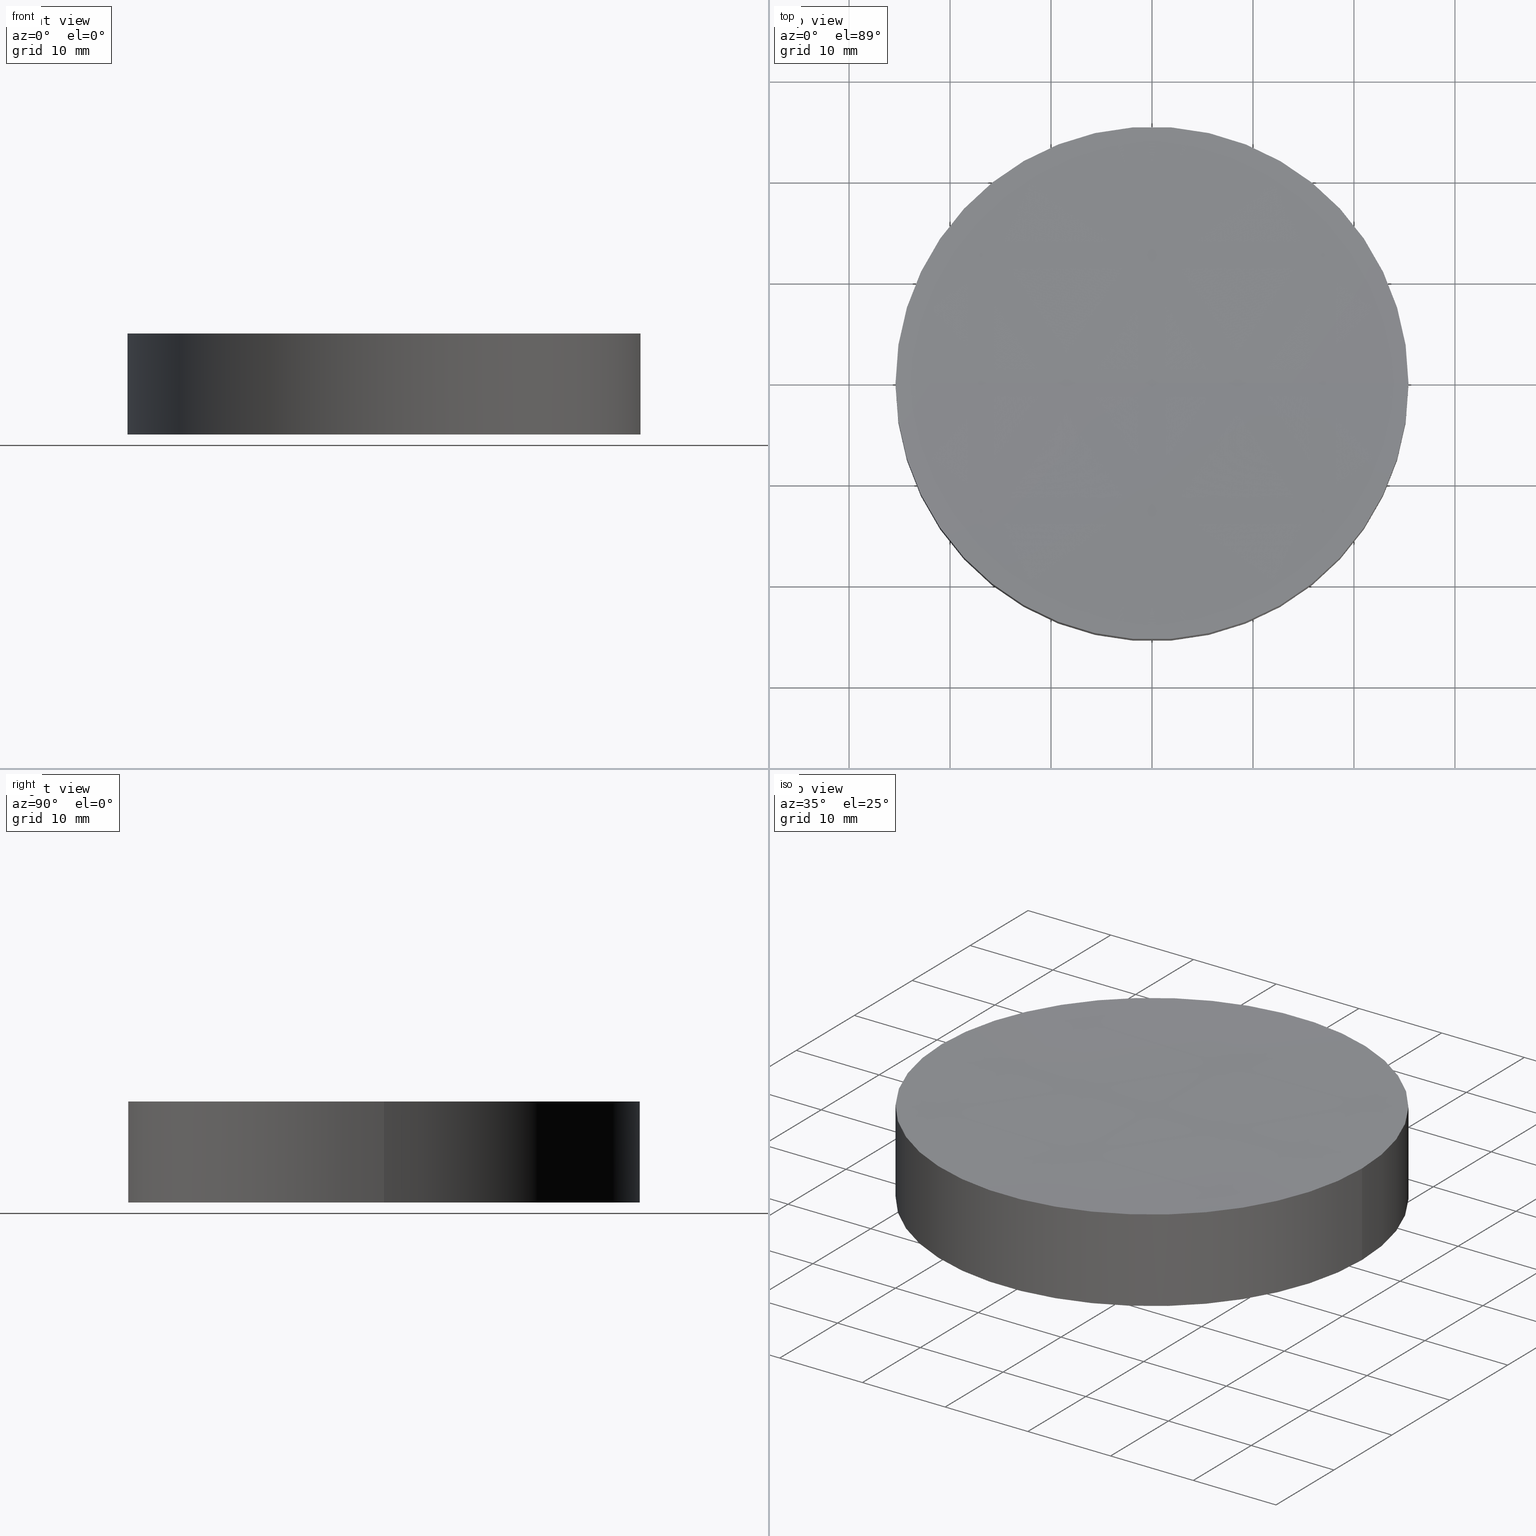
[diagram: canonical four-view strip — front | top / right | iso, engineering-drawing reading convention]
A machine part, canonical four-view strip (front | top / right | iso — engineering-drawing reading convention). The complete STEP part file that produces these views, byte-faithful:
ISO-10303-21;
HEADER;
FILE_DESCRIPTION (( 'STEP AP203' ),
    '1' );
FILE_NAME ('010-0510E_N-BK7_PCV_window.STEP',
    '2021-02-25T13:07:18',
    ( '' ),
    ( '' ),
    'SwSTEP 2.0',
    'SolidWorks 2019',
    '' );
FILE_SCHEMA (( 'CONFIG_CONTROL_DESIGN' ));
ENDSEC;

DATA;
#1 = DIRECTION ( 'NONE',  ( 1.000000000000000000, 0.000000000000000000, 0.000000000000000000 ) ) ;
#2 = ORIENTED_EDGE ( 'NONE', *, *, #197, .F. ) ;
#3 = AXIS2_PLACEMENT_3D ( 'NONE', #78, #91, #1 ) ;
#4 = CC_DESIGN_PERSON_AND_ORGANIZATION_ASSIGNMENT ( #90, #58, ( #189 ) ) ;
#5 = LOCAL_TIME ( 15, 7, 18.00000000000000000, #98 ) ;
#6 = ORIENTED_EDGE ( 'NONE', *, *, #197, .T. ) ;
#7 = DIRECTION ( 'NONE',  ( 1.000000000000000000, 0.000000000000000000, -0.000000000000000000 ) ) ;
#8 = COORDINATED_UNIVERSAL_TIME_OFFSET ( 2, 0, .AHEAD. ) ;
#9 = COORDINATED_UNIVERSAL_TIME_OFFSET ( 2, 0, .AHEAD. ) ;
#10 = CARTESIAN_POINT ( 'NONE',  ( 0.000000000000000000, 0.000000000000000000, 10.00000000000000000 ) ) ;
#11 = ORIENTED_EDGE ( 'NONE', *, *, #12, .F. ) ;
#12 = EDGE_CURVE ( 'NONE', #21, #31, #198, .T. ) ;
#13 = DIRECTION ( 'NONE',  ( -0.000000000000000000, -0.000000000000000000, -1.000000000000000000 ) ) ;
#14 = APPROVAL_ROLE ( '' ) ;
#15 = CARTESIAN_POINT ( 'NONE',  ( -25.39999999999999858, 0.000000000000000000, 10.00000000000000000 ) ) ;
#16 = EDGE_LOOP ( 'NONE', ( #2, #180, #64 ) ) ;
#17 = DIRECTION ( 'NONE',  ( -1.000000000000000000, 0.000000000000000000, 0.000000000000000000 ) ) ;
#18 = CC_DESIGN_APPROVAL ( #65, ( #43 ) ) ;
#19 = APPROVAL_PERSON_ORGANIZATION ( #162, #136, #116 ) ;
#20 = APPLICATION_PROTOCOL_DEFINITION ( 'international standard', 'config_control_design', 1994, #109 ) ;
#21 = VERTEX_POINT ( 'NONE', #107 ) ;
#22 = CALENDAR_DATE ( 2021, 25, 2 ) ;
#23 = PERSON_AND_ORGANIZATION_ROLE ( 'classification_officer' ) ;
#24 = CARTESIAN_POINT ( 'NONE',  ( 9.367506770274758310E-14, 0.000000000000000000, 759.5697699347272192 ) ) ;
#25 = PRODUCT ( '010-0510E_N-BK7_PCV_window', '010-0510E_N-BK7_PCV_window', '', ( #142 ) ) ;
#26 = CC_DESIGN_PERSON_AND_ORGANIZATION_ASSIGNMENT ( #37, #70, ( #25 ) ) ;
#27 = SPHERICAL_SURFACE ( 'NONE', #112, 750.0000000000001137 ) ;
#28 = APPLICATION_CONTEXT ( 'configuration controlled 3d designs of mechanical parts and assemblies' ) ;
#29 = APPROVAL_DATE_TIME ( #199, #48 ) ;
#30 = CARTESIAN_POINT ( 'NONE',  ( 0.000000000000000000, 0.000000000000000000, 0.000000000000000000 ) ) ;
#31 = VERTEX_POINT ( 'NONE', #185 ) ;
#32 = CYLINDRICAL_SURFACE ( 'NONE', #138, 25.39999999999999858 ) ;
#33 = ADVANCED_FACE ( 'NONE', ( #62 ), #32, .T. ) ;
#34 = ORIENTED_EDGE ( 'NONE', *, *, #40, .F. ) ;
#35 = CC_DESIGN_APPROVAL ( #48, ( #189 ) ) ;
#36 = AXIS2_PLACEMENT_3D ( 'NONE', #10, #179, #73 ) ;
#37 = PERSON_AND_ORGANIZATION ( #150, #96 ) ;
#38 = APPROVAL_ROLE ( '' ) ;
#39 = DIRECTION ( 'NONE',  ( 0.000000000000000000, 0.000000000000000000, 1.000000000000000000 ) ) ;
#40 = EDGE_CURVE ( 'NONE', #154, #161, #155, .T. ) ;
#41 = PERSON_AND_ORGANIZATION_ROLE ( 'design_supplier' ) ;
#42 = CARTESIAN_POINT ( 'NONE',  ( 9.367506770274758310E-14, 0.000000000000000000, 759.5697699347272192 ) ) ;
#43 = SECURITY_CLASSIFICATION ( '', '', #55 ) ;
#44 = CIRCLE ( 'NONE', #119, 25.40000000000502922 ) ;
#45 = DATE_TIME_ROLE ( 'creation_date' ) ;
#46 = FACE_OUTER_BOUND ( 'NONE', #16, .T. ) ;
#47 = LINE ( 'NONE', #15, #105 ) ;
#48 = APPROVAL ( #106, 'UNSPECIFIED' ) ;
#49 = DIRECTION ( 'NONE',  ( 1.224646799147353207E-16, -1.000000000000000000, 0.000000000000000000 ) ) ;
#50 = CC_DESIGN_APPROVAL ( #136, ( #110 ) ) ;
#51 = PRODUCT_RELATED_PRODUCT_CATEGORY ( 'detail', '', ( #25 ) ) ;
#52 = VECTOR ( 'NONE', #134, 1000.000000000000000 ) ;
#53 = CARTESIAN_POINT ( 'NONE',  ( 25.40000000000512514, 3.110602869834904798E-15, 10.00000000000000888 ) ) ;
#54 = ORIENTED_EDGE ( 'NONE', *, *, #170, .T. ) ;
#55 = SECURITY_CLASSIFICATION_LEVEL ( 'unclassified' ) ;
#56 = APPROVAL_DATE_TIME ( #196, #65 ) ;
#57 = CARTESIAN_POINT ( 'NONE',  ( 25.39999999999999858, 3.110602869834276865E-15, 0.000000000000000000 ) ) ;
#58 = PERSON_AND_ORGANIZATION_ROLE ( 'creator' ) ;
#59 = SPHERICAL_SURFACE ( 'NONE', #190, 750.0000000000001137 ) ;
#60 = EDGE_CURVE ( 'NONE', #79, #161, #80, .T. ) ;
#61 = ORIENTED_EDGE ( 'NONE', *, *, #77, .F. ) ;
#62 = FACE_OUTER_BOUND ( 'NONE', #139, .T. ) ;
#63 = AXIS2_PLACEMENT_3D ( 'NONE', #42, #148, #143 ) ;
#64 = ORIENTED_EDGE ( 'NONE', *, *, #170, .F. ) ;
#65 = APPROVAL ( #146, 'UNSPECIFIED' ) ;
#66 = ADVANCED_FACE ( 'NONE', ( #46 ), #59, .F. ) ;
#67 = AXIS2_PLACEMENT_3D ( 'NONE', #68, #125, #115 ) ;
#68 = CARTESIAN_POINT ( 'NONE',  ( 9.367506770274758310E-14, 0.000000000000000000, 10.00000000000000888 ) ) ;
#69 = ORIENTED_EDGE ( 'NONE', *, *, #94, .T. ) ;
#70 = PERSON_AND_ORGANIZATION_ROLE ( 'design_owner' ) ;
#71 = DATE_AND_TIME ( #22, #74 ) ;
#72 = DATE_TIME_ROLE ( 'classification_date' ) ;
#73 = DIRECTION ( 'NONE',  ( -1.000000000000000000, 0.000000000000000000, 0.000000000000000000 ) ) ;
#74 = LOCAL_TIME ( 15, 7, 18.00000000000000000, #8 ) ;
#75 = COORDINATED_UNIVERSAL_TIME_OFFSET ( 2, 0, .AHEAD. ) ;
#76 = DIRECTION ( 'NONE',  ( 1.000000000000000000, 0.000000000000000000, 0.000000000000000000 ) ) ;
#77 = EDGE_CURVE ( 'NONE', #161, #79, #158, .T. ) ;
#78 = CARTESIAN_POINT ( 'NONE',  ( 0.000000000000000000, 0.000000000000000000, 0.000000000000000000 ) ) ;
#79 = VERTEX_POINT ( 'NONE', #108 ) ;
#80 = CIRCLE ( 'NONE', #3, 25.39999999999999858 ) ;
#81 = EDGE_LOOP ( 'NONE', ( #11, #84, #54 ) ) ;
#82 = EDGE_CURVE ( 'NONE', #21, #79, #47, .T. ) ;
#83 =( GEOMETRIC_REPRESENTATION_CONTEXT ( 3 ) GLOBAL_UNCERTAINTY_ASSIGNED_CONTEXT ( ( #167 ) ) GLOBAL_UNIT_ASSIGNED_CONTEXT ( ( #95, #97, #194 ) ) REPRESENTATION_CONTEXT ( 'NONE', 'WORKASPACE' ) );
#84 = ORIENTED_EDGE ( 'NONE', *, *, #94, .F. ) ;
#85 = PERSON_AND_ORGANIZATION ( #150, #96 ) ;
#86 = DATE_AND_TIME ( #114, #5 ) ;
#87 = CYLINDRICAL_SURFACE ( 'NONE', #36, 25.39999999999999858 ) ;
#88 = FACE_OUTER_BOUND ( 'NONE', #81, .T. ) ;
#89 = DESIGN_CONTEXT ( 'detailed design', #109, 'design' ) ;
#90 = PERSON_AND_ORGANIZATION ( #150, #96 ) ;
#91 = DIRECTION ( 'NONE',  ( 0.000000000000000000, 0.000000000000000000, 1.000000000000000000 ) ) ;
#92 = ORIENTED_EDGE ( 'NONE', *, *, #77, .T. ) ;
#93 = CARTESIAN_POINT ( 'NONE',  ( 0.000000000000000000, 0.000000000000000000, 10.00000000000000000 ) ) ;
#94 = EDGE_CURVE ( 'NONE', #154, #21, #44, .T. ) ;
#95 =( LENGTH_UNIT ( ) NAMED_UNIT ( * ) SI_UNIT ( .MILLI., .METRE. ) );
#96 = ORGANIZATION ( 'UNSPECIFIED', 'UNSPECIFIED', '' ) ;
#97 =( NAMED_UNIT ( * ) PLANE_ANGLE_UNIT ( ) SI_UNIT ( $, .RADIAN. ) );
#98 = COORDINATED_UNIVERSAL_TIME_OFFSET ( 2, 0, .AHEAD. ) ;
#99 = DIRECTION ( 'NONE',  ( -0.000000000000000000, -0.000000000000000000, -1.000000000000000000 ) ) ;
#100 = ORIENTED_EDGE ( 'NONE', *, *, #60, .T. ) ;
#101 = APPROVAL_STATUS ( 'not_yet_approved' ) ;
#102 = PRODUCT_DEFINITION_SHAPE ( 'NONE', 'NONE',  #189 ) ;
#103 = FACE_OUTER_BOUND ( 'NONE', #174, .T. ) ;
#104 = CC_DESIGN_PERSON_AND_ORGANIZATION_ASSIGNMENT ( #85, #145, ( #110 ) ) ;
#105 = VECTOR ( 'NONE', #172, 1000.000000000000000 ) ;
#106 = APPROVAL_STATUS ( 'not_yet_approved' ) ;
#107 = CARTESIAN_POINT ( 'NONE',  ( -25.40000000000493330, 0.000000000000000000, 10.00000000000000888 ) ) ;
#108 = CARTESIAN_POINT ( 'NONE',  ( -25.39999999999999858, 0.000000000000000000, 0.000000000000000000 ) ) ;
#109 = APPLICATION_CONTEXT ( 'configuration controlled 3d designs of mechanical parts and assemblies' ) ;
#110 = PRODUCT_DEFINITION_FORMATION_WITH_SPECIFIED_SOURCE ( 'ANY', '', #25, .NOT_KNOWN. ) ;
#111 = ADVANCED_FACE ( 'NONE', ( #164 ), #87, .T. ) ;
#112 = AXIS2_PLACEMENT_3D ( 'NONE', #24, #147, #182 ) ;
#113 = DIRECTION ( 'NONE',  ( 0.000000000000000000, 0.000000000000000000, 1.000000000000000000 ) ) ;
#114 = CALENDAR_DATE ( 2021, 25, 2 ) ;
#115 = DIRECTION ( 'NONE',  ( 1.000000000000000000, 0.000000000000000000, 0.000000000000000000 ) ) ;
#116 = APPROVAL_ROLE ( '' ) ;
#117 = CARTESIAN_POINT ( 'NONE',  ( 0.000000000000000000, 0.000000000000000000, 0.000000000000000000 ) ) ;
#118 = AXIS2_PLACEMENT_3D ( 'NONE', #191, #113, #177 ) ;
#119 = AXIS2_PLACEMENT_3D ( 'NONE', #192, #99, #165 ) ;
#120 = CALENDAR_DATE ( 2021, 25, 2 ) ;
#121 = CARTESIAN_POINT ( 'NONE',  ( 9.367506770274758310E-14, 0.000000000000000000, 759.5697699347272192 ) ) ;
#122 = CC_DESIGN_DATE_AND_TIME_ASSIGNMENT ( #86, #72, ( #43 ) ) ;
#123 = LOCAL_TIME ( 15, 7, 18.00000000000000000, #9 ) ;
#124 = AXIS2_PLACEMENT_3D ( 'NONE', #30, #152, #76 ) ;
#125 = DIRECTION ( 'NONE',  ( -0.000000000000000000, -0.000000000000000000, -1.000000000000000000 ) ) ;
#126 = ORIENTED_EDGE ( 'NONE', *, *, #40, .T. ) ;
#127 = APPROVAL_DATE_TIME ( #71, #136 ) ;
#128 = CALENDAR_DATE ( 2021, 25, 2 ) ;
#129 = PLANE ( 'NONE',  #141 ) ;
#130 = ADVANCED_FACE ( 'NONE', ( #103 ), #129, .F. ) ;
#131 = AXIS2_PLACEMENT_3D ( 'NONE', #137, #49, #135 ) ;
#132 = LOCAL_TIME ( 15, 7, 18.00000000000000000, #168 ) ;
#133 = CALENDAR_DATE ( 2021, 25, 2 ) ;
#134 = DIRECTION ( 'NONE',  ( -0.000000000000000000, -0.000000000000000000, -1.000000000000000000 ) ) ;
#135 = DIRECTION ( 'NONE',  ( 1.000000000000000000, 1.224646799147353207E-16, 0.000000000000000000 ) ) ;
#136 = APPROVAL ( #101, 'UNSPECIFIED' ) ;
#137 = CARTESIAN_POINT ( 'NONE',  ( 9.367506770274758310E-14, 0.000000000000000000, 759.5697699347272192 ) ) ;
#138 = AXIS2_PLACEMENT_3D ( 'NONE', #93, #13, #17 ) ;
#139 = EDGE_LOOP ( 'NONE', ( #34, #69, #201, #100 ) ) ;
#140 = APPROVAL_PERSON_ORGANIZATION ( #163, #65, #38 ) ;
#141 = AXIS2_PLACEMENT_3D ( 'NONE', #117, #39, #7 ) ;
#142 = MECHANICAL_CONTEXT ( 'NONE', #28, 'mechanical' ) ;
#143 = DIRECTION ( 'NONE',  ( 0.000000000000000000, 0.000000000000000000, 1.000000000000000000 ) ) ;
#144 = APPLICATION_PROTOCOL_DEFINITION ( 'international standard', 'config_control_design', 1994, #28 ) ;
#145 = PERSON_AND_ORGANIZATION_ROLE ( 'creator' ) ;
#146 = APPROVAL_STATUS ( 'not_yet_approved' ) ;
#147 = DIRECTION ( 'NONE',  ( 0.000000000000000000, -1.000000000000000000, -0.000000000000000000 ) ) ;
#148 = DIRECTION ( 'NONE',  ( 0.000000000000000000, 1.000000000000000000, -0.000000000000000000 ) ) ;
#149 = CIRCLE ( 'NONE', #63, 750.0000000000002274 ) ;
#150 = PERSON ( 'UNSPECIFIED', 'UNSPECIFIED', 'UNSPECIFIED', ('UNSPECIFIED'), ('UNSPECIFIED'), ('UNSPECIFIED') ) ;
#151 = PERSON_AND_ORGANIZATION ( #150, #96 ) ;
#152 = DIRECTION ( 'NONE',  ( 0.000000000000000000, 0.000000000000000000, 1.000000000000000000 ) ) ;
#153 = ADVANCED_FACE ( 'NONE', ( #88 ), #27, .F. ) ;
#154 = VERTEX_POINT ( 'NONE', #53 ) ;
#155 = LINE ( 'NONE', #186, #52 ) ;
#156 = ORIENTED_EDGE ( 'NONE', *, *, #60, .F. ) ;
#157 = CC_DESIGN_SECURITY_CLASSIFICATION ( #43, ( #110 ) ) ;
#158 = CIRCLE ( 'NONE', #124, 25.39999999999999858 ) ;
#159 = CC_DESIGN_PERSON_AND_ORGANIZATION_ASSIGNMENT ( #181, #23, ( #43 ) ) ;
#160 = CC_DESIGN_PERSON_AND_ORGANIZATION_ASSIGNMENT ( #195, #41, ( #110 ) ) ;
#161 = VERTEX_POINT ( 'NONE', #57 ) ;
#162 = PERSON_AND_ORGANIZATION ( #150, #96 ) ;
#163 = PERSON_AND_ORGANIZATION ( #150, #96 ) ;
#164 = FACE_OUTER_BOUND ( 'NONE', #193, .T. ) ;
#165 = DIRECTION ( 'NONE',  ( 1.000000000000000000, 0.000000000000000000, 0.000000000000000000 ) ) ;
#166 = MANIFOLD_SOLID_BREP ( 'Cut-Revolve1', #183 ) ;
#167 = UNCERTAINTY_MEASURE_WITH_UNIT (LENGTH_MEASURE( 1.000000000000000082E-05 ), #95, 'distance_accuracy_value', 'NONE');
#168 = COORDINATED_UNIVERSAL_TIME_OFFSET ( 2, 0, .AHEAD. ) ;
#169 = DIRECTION ( 'NONE',  ( 1.000000000000000000, 0.000000000000000000, 0.000000000000000000 ) ) ;
#170 = EDGE_CURVE ( 'NONE', #154, #31, #149, .T. ) ;
#171 = ORIENTED_EDGE ( 'NONE', *, *, #82, .F. ) ;
#172 = DIRECTION ( 'NONE',  ( -0.000000000000000000, -0.000000000000000000, -1.000000000000000000 ) ) ;
#173 = ADVANCED_BREP_SHAPE_REPRESENTATION ( '010-0510E_N-BK7_PCV_window', ( #166, #118 ), #83 ) ;
#174 = EDGE_LOOP ( 'NONE', ( #156, #61 ) ) ;
#175 = CC_DESIGN_DATE_AND_TIME_ASSIGNMENT ( #184, #45, ( #189 ) ) ;
#176 = CIRCLE ( 'NONE', #67, 25.40000000000502922 ) ;
#177 = DIRECTION ( 'NONE',  ( 1.000000000000000000, 0.000000000000000000, 0.000000000000000000 ) ) ;
#178 = SHAPE_DEFINITION_REPRESENTATION ( #102, #173 ) ;
#179 = DIRECTION ( 'NONE',  ( -0.000000000000000000, -0.000000000000000000, -1.000000000000000000 ) ) ;
#180 = ORIENTED_EDGE ( 'NONE', *, *, #12, .T. ) ;
#181 = PERSON_AND_ORGANIZATION ( #150, #96 ) ;
#182 = DIRECTION ( 'NONE',  ( 1.000000000000000000, 0.000000000000000000, 0.000000000000000000 ) ) ;
#183 = CLOSED_SHELL ( 'NONE', ( #66, #111, #33, #130, #153 ) ) ;
#184 = DATE_AND_TIME ( #120, #187 ) ;
#185 = CARTESIAN_POINT ( 'NONE',  ( 1.395993226707733394E-13, 0.000000000000000000, 9.569769934727133887 ) ) ;
#186 = CARTESIAN_POINT ( 'NONE',  ( 25.39999999999999858, 3.110602869834276865E-15, 10.00000000000000000 ) ) ;
#187 = LOCAL_TIME ( 15, 7, 18.00000000000000000, #75 ) ;
#188 = APPROVAL_PERSON_ORGANIZATION ( #151, #48, #14 ) ;
#189 = PRODUCT_DEFINITION ( 'UNKNOWN', '', #110, #89 ) ;
#190 = AXIS2_PLACEMENT_3D ( 'NONE', #121, #200, #169 ) ;
#191 = CARTESIAN_POINT ( 'NONE',  ( 0.000000000000000000, 0.000000000000000000, 0.000000000000000000 ) ) ;
#192 = CARTESIAN_POINT ( 'NONE',  ( 9.367506770274758310E-14, 0.000000000000000000, 10.00000000000000888 ) ) ;
#193 = EDGE_LOOP ( 'NONE', ( #6, #126, #92, #171 ) ) ;
#194 =( NAMED_UNIT ( * ) SI_UNIT ( $, .STERADIAN. ) SOLID_ANGLE_UNIT ( ) );
#195 = PERSON_AND_ORGANIZATION ( #150, #96 ) ;
#196 = DATE_AND_TIME ( #128, #123 ) ;
#197 = EDGE_CURVE ( 'NONE', #21, #154, #176, .T. ) ;
#198 = CIRCLE ( 'NONE', #131, 750.0000000000001137 ) ;
#199 = DATE_AND_TIME ( #133, #132 ) ;
#200 = DIRECTION ( 'NONE',  ( 0.000000000000000000, -1.000000000000000000, -0.000000000000000000 ) ) ;
#201 = ORIENTED_EDGE ( 'NONE', *, *, #82, .T. ) ;
ENDSEC;
END-ISO-10303-21;
